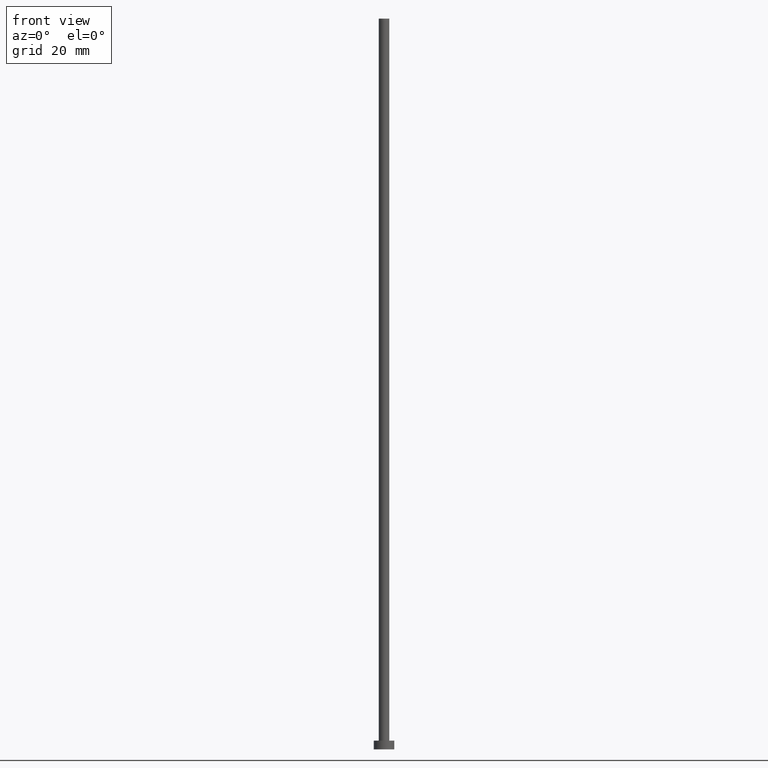
[diagram: clean part render]
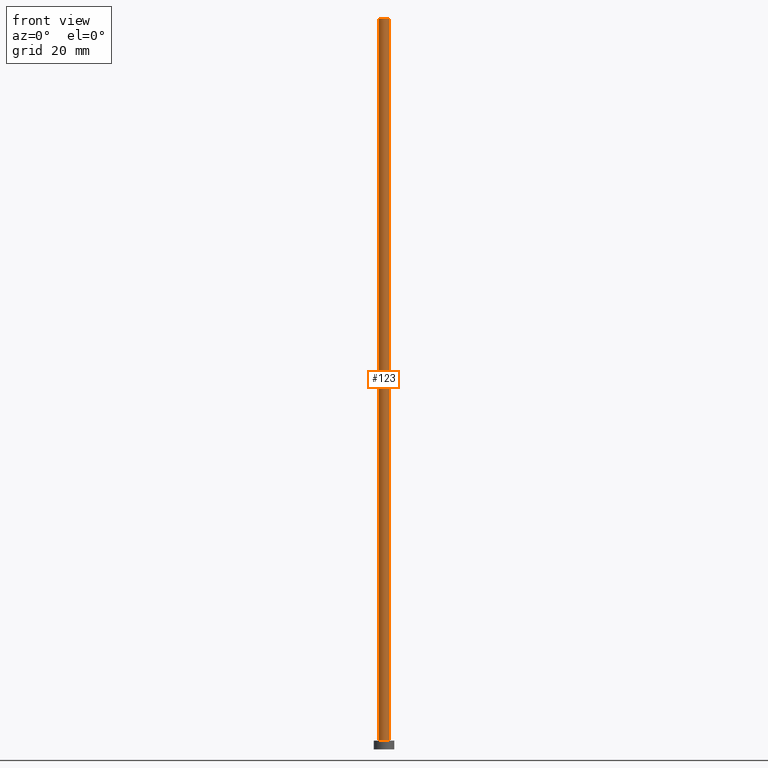
[diagram: same view with one face highlighted and labeled with its STEP entity id]
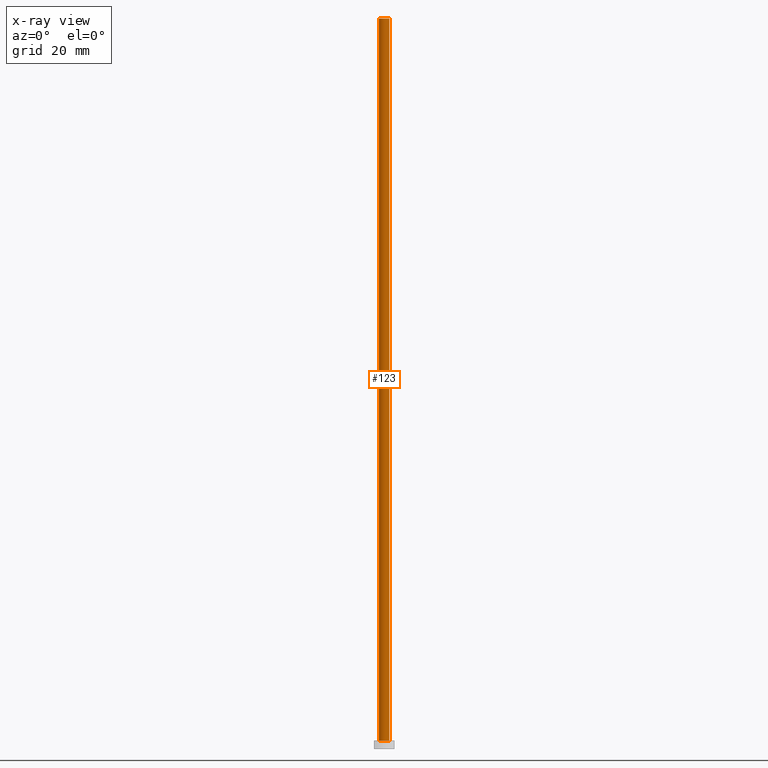
[diagram: x-ray of the same camera — body ghosted, the highlighted face saturated]
A machine part, front view. The second image highlights one B-rep face of the part: STEP entity #123.
The next image is the same camera in x-ray: the body ghosted, the highlighted face saturated — about 0% of this face is hidden behind the body in this view.
In plain terms, the highlighted cylindrical surface (edge-blend (fillet) strip) has radius 1.8 mm, axis along (-0, -0, -1).
Its self-contained STEP definition (entity closure, byte-faithful):
#3 = CARTESIAN_POINT ( 'NONE',  ( -1.800000000000000044, 0.000000000000000000, 3.000000000000000000 ) ) ;
#11 = LINE ( 'NONE', #94, #198 ) ;
#12 = DIRECTION ( 'NONE',  ( 1.000000000000000000, 0.000000000000000000, 0.000000000000000000 ) ) ;
#20 = CYLINDRICAL_SURFACE ( 'NONE', #204, 1.800000000000000044 ) ;
#26 = CARTESIAN_POINT ( 'NONE',  ( -1.800000000000000044, 0.000000000000000000, 250.0000000000000000 ) ) ;
#28 = CIRCLE ( 'NONE', #208, 1.800000000000000044 ) ;
#40 = EDGE_CURVE ( 'NONE', #222, #130, #28, .T. ) ;
#51 = DIRECTION ( 'NONE',  ( -0.000000000000000000, -0.000000000000000000, -1.000000000000000000 ) ) ;
#52 = DIRECTION ( 'NONE',  ( 0.000000000000000000, 0.000000000000000000, 1.000000000000000000 ) ) ;
#63 = CARTESIAN_POINT ( 'NONE',  ( 1.800000000000000044, 2.204364238465235576E-16, 250.0000000000000000 ) ) ;
#69 = VECTOR ( 'NONE', #51, 1000.000000000000000 ) ;
#81 = FACE_OUTER_BOUND ( 'NONE', #85, .T. ) ;
#85 = EDGE_LOOP ( 'NONE', ( #143, #199, #101, #218 ) ) ;
#88 = CARTESIAN_POINT ( 'NONE',  ( 0.000000000000000000, 0.000000000000000000, 250.0000000000000000 ) ) ;
#94 = CARTESIAN_POINT ( 'NONE',  ( -1.800000000000000044, 0.000000000000000000, 250.0000000000000000 ) ) ;
#101 = ORIENTED_EDGE ( 'NONE', *, *, #158, .T. ) ;
#103 = VERTEX_POINT ( 'NONE', #3 ) ;
#105 = DIRECTION ( 'NONE',  ( -0.000000000000000000, -0.000000000000000000, -1.000000000000000000 ) ) ;
#109 = DIRECTION ( 'NONE',  ( 0.000000000000000000, 0.000000000000000000, 1.000000000000000000 ) ) ;
#112 = CIRCLE ( 'NONE', #188, 1.800000000000000044 ) ;
#123 = ADVANCED_FACE ( 'NONE', ( #81 ), #20, .T. ) ;
#125 = CARTESIAN_POINT ( 'NONE',  ( 1.800000000000000044, 2.204364238465235576E-16, 250.0000000000000000 ) ) ;
#130 = VERTEX_POINT ( 'NONE', #63 ) ;
#143 = ORIENTED_EDGE ( 'NONE', *, *, #150, .F. ) ;
#148 = LINE ( 'NONE', #125, #69 ) ;
#150 = EDGE_CURVE ( 'NONE', #130, #153, #148, .T. ) ;
#153 = VERTEX_POINT ( 'NONE', #226 ) ;
#158 = EDGE_CURVE ( 'NONE', #222, #103, #11, .T. ) ;
#183 = DIRECTION ( 'NONE',  ( -0.000000000000000000, -0.000000000000000000, -1.000000000000000000 ) ) ;
#188 = AXIS2_PLACEMENT_3D ( 'NONE', #230, #52, #12 ) ;
#198 = VECTOR ( 'NONE', #183, 1000.000000000000000 ) ;
#199 = ORIENTED_EDGE ( 'NONE', *, *, #40, .F. ) ;
#200 = CARTESIAN_POINT ( 'NONE',  ( 0.000000000000000000, 0.000000000000000000, 250.0000000000000000 ) ) ;
#204 = AXIS2_PLACEMENT_3D ( 'NONE', #200, #105, #220 ) ;
#208 = AXIS2_PLACEMENT_3D ( 'NONE', #88, #109, #247 ) ;
#218 = ORIENTED_EDGE ( 'NONE', *, *, #227, .T. ) ;
#220 = DIRECTION ( 'NONE',  ( -1.000000000000000000, 0.000000000000000000, 0.000000000000000000 ) ) ;
#222 = VERTEX_POINT ( 'NONE', #26 ) ;
#226 = CARTESIAN_POINT ( 'NONE',  ( 1.800000000000000044, 2.204364238465235576E-16, 3.000000000000000000 ) ) ;
#227 = EDGE_CURVE ( 'NONE', #103, #153, #112, .T. ) ;
#230 = CARTESIAN_POINT ( 'NONE',  ( 0.000000000000000000, 0.000000000000000000, 3.000000000000000000 ) ) ;
#247 = DIRECTION ( 'NONE',  ( 1.000000000000000000, 0.000000000000000000, 0.000000000000000000 ) ) ;